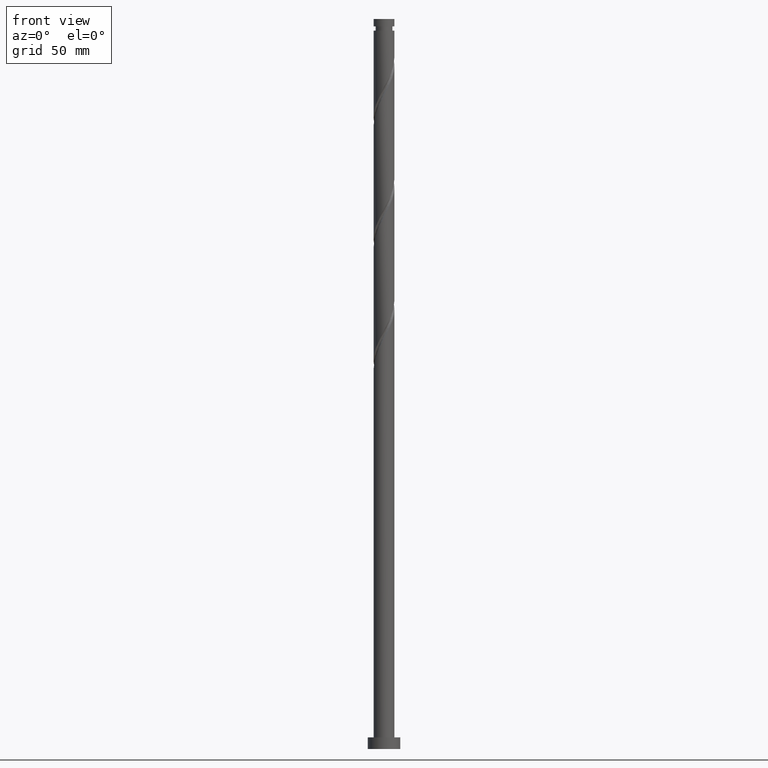
[diagram: clean part render]
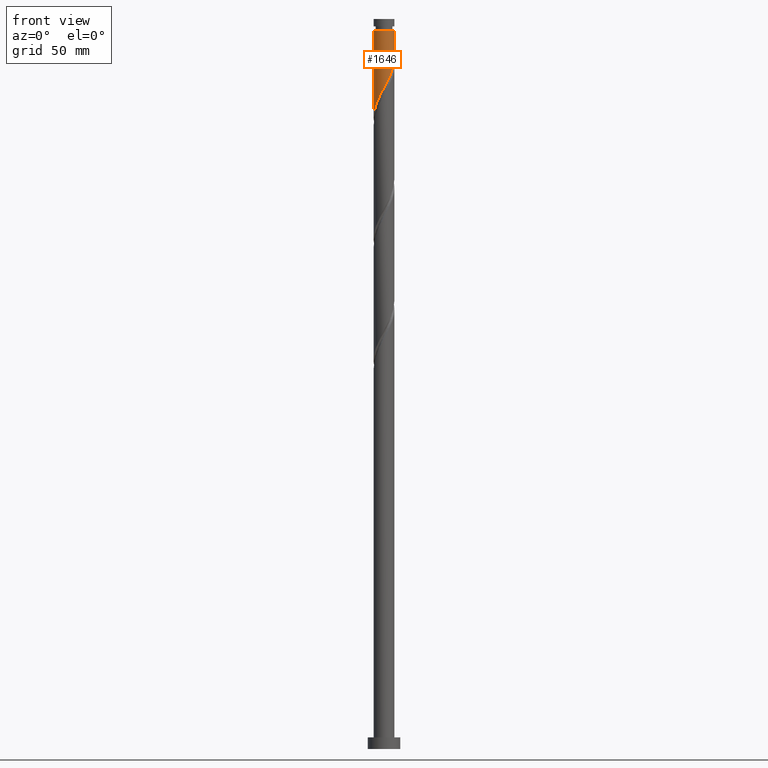
[diagram: same view with one face highlighted and labeled with its STEP entity id]
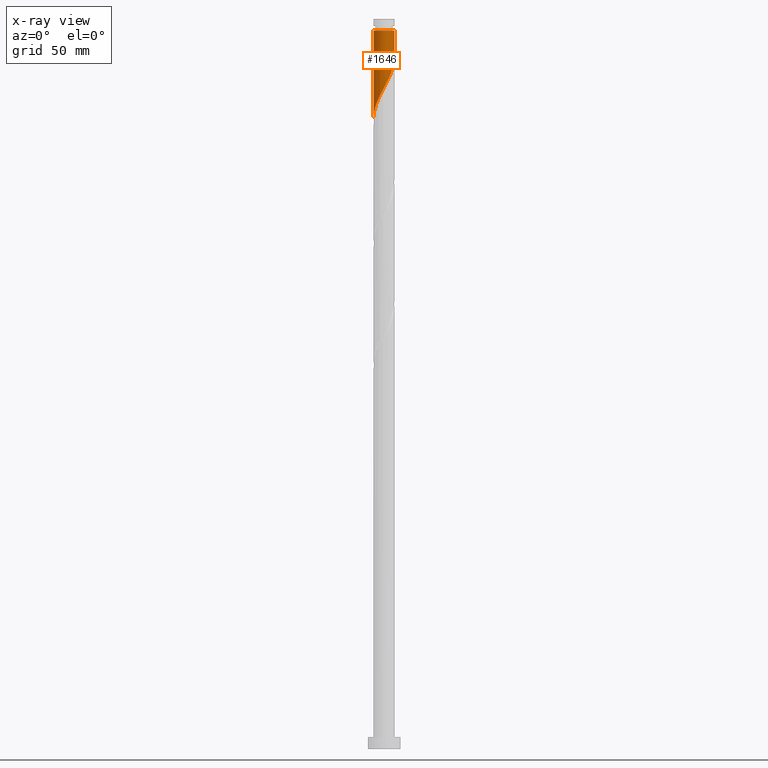
[diagram: x-ray of the same camera — body ghosted, the highlighted face saturated]
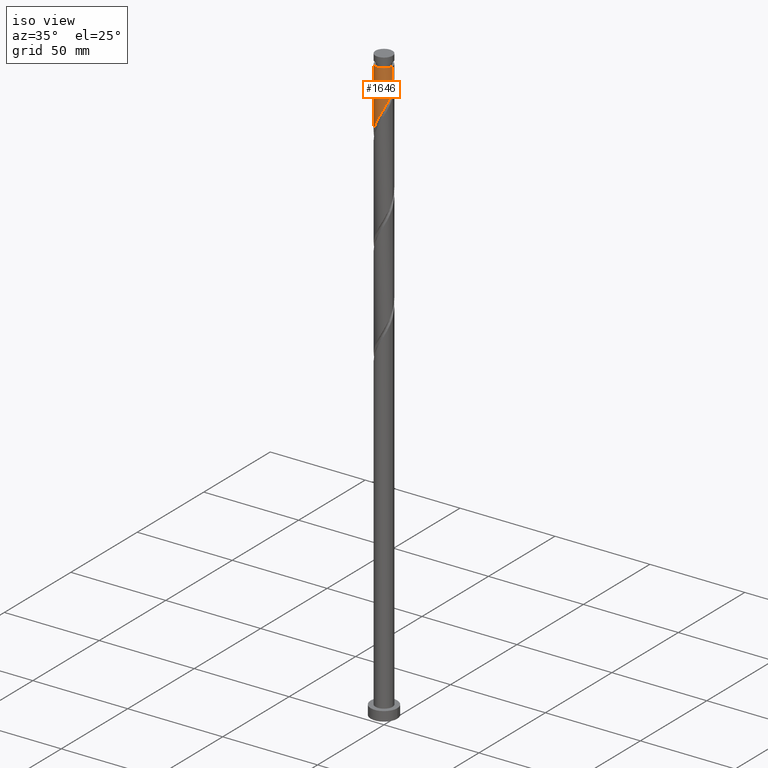
[diagram: same view with one face highlighted and labeled with its STEP entity id]
A machine part, front view. The second image highlights one B-rep face of the part: STEP entity #1646.
The next image is the same camera in x-ray: the body ghosted, the highlighted face saturated — about 0% of this face is hidden behind the body in this view.
A second angle (iso view) of the same face is appended — the face is thin or edge-on in the first view.
In plain terms, the highlighted cylindrical surface (edge-blend (fillet) strip) has radius 4.5 mm, axis along (-0, -0, -1).
Its self-contained STEP definition (entity closure, byte-faithful):
#22 = CARTESIAN_POINT ( 'NONE',  ( -4.006204905696196583, -2.049468773505890962, 276.2490483705882411 ) ) ;
#28 = CYLINDRICAL_SURFACE ( 'NONE', #849, 4.500000000000000888 ) ;
#103 = CARTESIAN_POINT ( 'NONE',  ( 2.049468773505890518, -4.006204905696196583, 289.3740483705881275 ) ) ;
#129 =( BOUNDED_CURVE ( )  B_SPLINE_CURVE ( 2, ( #1253, #1849, #1858, #1156, #276, #1122, #1276, #1708, #693, #1136, #103, #706, #257, #725, #1915, #1717, #1113, #384, #681, #396, #1731, #1134, #404, #243, #22, #1351, #618, #189, #478, #629, #1213 ),
 .UNSPECIFIED., .F., .T. ) 
 B_SPLINE_CURVE_WITH_KNOTS ( ( 3, 2, 2, 2, 2, 2, 2, 2, 2, 2, 2, 2, 2, 2, 2, 3 ),
 ( 0.3045303401299222501, 0.3125000000000000000, 0.3214285714285714524, 0.3303571428571428492, 0.3392857142857143016, 0.3482142857142856984, 0.3571428571428571508, 0.3660714285714285476, 0.3750000000000000000, 0.3839285714285714524, 0.3928571428571428492, 0.4017857142857143016, 0.4107142857142856984, 0.4196428571428571508, 0.4285714285714285476, 0.4295303401299221946 ),
 .UNSPECIFIED. ) 
 CURVE ( )  GEOMETRIC_REPRESENTATION_ITEM ( )  RATIONAL_B_SPLINE_CURVE ( ( 0.9079949616362008591, 0.9039886423360644629, 0.9090909090909310430, 0.9033747362666060265, 0.9090909090909310430, 0.9033747362666060265, 0.9090909090909310430, 0.9033747362666060265, 0.9090909090909310430, 0.9033747362666060265, 0.9090909090909310430, 0.9033747362666060265, 0.9090909090909310430, 0.9033747362666060265, 0.9090909090909310430, 0.9033747362666060265, 0.9090909090909310430, 0.9033747362666060265, 0.9090909090909310430, 0.9033747362666060265, 0.9090909090909310430, 0.9033747362666060265, 0.9090909090909310430, 0.9033747362666060265, 0.9090909090909310430, 0.9033747362666060265, 0.9090909090909310430, 0.9033747362666060265, 0.9090909090909310430, 0.9084770030214727177, 0.9079949616362009701 ) ) 
 REPRESENTATION_ITEM ( '' )  );
#142 = ORIENTED_EDGE ( 'NONE', *, *, #415, .T. ) ;
#151 = EDGE_CURVE ( 'NONE', #1060, #1453, #129, .T. ) ;
#152 = DIRECTION ( 'NONE',  ( -1.000000000000000000, 0.000000000000000000, 0.000000000000000000 ) ) ;
#189 = CARTESIAN_POINT ( 'NONE',  ( -4.486496802515031135, -0.6151618214612561975, 273.4365483705881275 ) ) ;
#243 = CARTESIAN_POINT ( 'NONE',  ( -3.775285233751813241, -2.500859658072928315, 277.1865483705881275 ) ) ;
#257 = CARTESIAN_POINT ( 'NONE',  ( 1.106619855200054570, -4.361810690077805752, 287.4990483705880706 ) ) ;
#266 = CARTESIAN_POINT ( 'NONE',  ( 0.000000000000000000, 0.000000000000000000, 309.9990483705881275 ) ) ;
#271 = VERTEX_POINT ( 'NONE', #1390 ) ;
#276 = CARTESIAN_POINT ( 'NONE',  ( 4.100167112320053597, -1.854354240982301727, 294.9990483705881843 ) ) ;
#303 = FACE_OUTER_BOUND ( 'NONE', #1176, .T. ) ;
#384 = CARTESIAN_POINT ( 'NONE',  ( -1.392376358355452481, -4.309102656267769227, 282.8115483705881275 ) ) ;
#396 = CARTESIAN_POINT ( 'NONE',  ( -2.316332123609150528, -3.891231568372338412, 280.9365483705880706 ) ) ;
#404 = CARTESIAN_POINT ( 'NONE',  ( -3.449711278888139443, -2.889548769671827166, 278.1240483705881275 ) ) ;
#409 = ORIENTED_EDGE ( 'NONE', *, *, #1757, .F. ) ;
#415 = EDGE_CURVE ( 'NONE', #271, #1453, #1018, .T. ) ;
#478 = CARTESIAN_POINT ( 'NONE',  ( -4.498697073123632428, -0.1082803965123919215, 272.4990483705881843 ) ) ;
#571 = CARTESIAN_POINT ( 'NONE',  ( -4.500000000000000888, 0.000000000000000000, 315.0000000000000000 ) ) ;
#601 = VERTEX_POINT ( 'NONE', #1254 ) ;
#618 = CARTESIAN_POINT ( 'NONE',  ( -4.361810690077805752, -1.106619855200054792, 274.3740483705881275 ) ) ;
#629 = CARTESIAN_POINT ( 'NONE',  ( -4.500000000000003553, -0.05414803724874443780, 272.3989281367193485 ) ) ;
#681 = CARTESIAN_POINT ( 'NONE',  ( -1.854354240982301505, -4.100167112320053597, 281.8740483705881275 ) ) ;
#693 = CARTESIAN_POINT ( 'NONE',  ( 2.889548769671827166, -3.449711278888139887, 291.2490483705881843 ) ) ;
#706 = CARTESIAN_POINT ( 'NONE',  ( 1.598077888938853164, -4.237124577640579481, 288.4365483705880706 ) ) ;
#725 = CARTESIAN_POINT ( 'NONE',  ( 0.6151618214612560864, -4.486496802515029358, 286.5615483705881275 ) ) ;
#751 = LINE ( 'NONE', #1337, #1370 ) ;
#760 = AXIS2_PLACEMENT_3D ( 'NONE', #266, #1112, #1313 ) ;
#849 = AXIS2_PLACEMENT_3D ( 'NONE', #1490, #896, #152 ) ;
#896 = DIRECTION ( 'NONE',  ( -0.000000000000000000, -0.000000000000000000, -1.000000000000000000 ) ) ;
#921 = CARTESIAN_POINT ( 'NONE',  ( 4.500000000000002665, 2.917988723458370690E-15, 298.5485654484941733 ) ) ;
#924 = CIRCLE ( 'NONE', #760, 4.499999999999975131 ) ;
#1018 = LINE ( 'NONE', #571, #1320 ) ;
#1052 = DIRECTION ( 'NONE',  ( -0.000000000000000000, -0.000000000000000000, -1.000000000000000000 ) ) ;
#1060 = VERTEX_POINT ( 'NONE', #921 ) ;
#1112 = DIRECTION ( 'NONE',  ( -0.000000000000000000, -0.000000000000000000, -1.000000000000000000 ) ) ;
#1113 = CARTESIAN_POINT ( 'NONE',  ( -0.8954886933959623763, -4.410000000000001030, 283.7490483705881843 ) ) ;
#1122 = CARTESIAN_POINT ( 'NONE',  ( 3.891231568372338412, -2.316332123609150528, 294.0615483705881275 ) ) ;
#1134 = CARTESIAN_POINT ( 'NONE',  ( -3.124137324024466533, -3.278237881270724685, 279.0615483705881843 ) ) ;
#1136 = CARTESIAN_POINT ( 'NONE',  ( 2.500859658072928315, -3.775285233751813685, 290.3115483705881275 ) ) ;
#1156 = CARTESIAN_POINT ( 'NONE',  ( 4.309102656267769227, -1.392376358355452703, 295.9365483705881843 ) ) ;
#1176 = EDGE_LOOP ( 'NONE', ( #409, #1897, #142, #1894 ) ) ;
#1213 = CARTESIAN_POINT ( 'NONE',  ( -4.500000000000003553, 2.932914496979897836E-15, 272.2985654484942302 ) ) ;
#1253 = CARTESIAN_POINT ( 'NONE',  ( 4.500000000000002665, 2.917988723458370690E-15, 298.5485654484941165 ) ) ;
#1254 = CARTESIAN_POINT ( 'NONE',  ( 4.499999999999975131, 5.510910596163073778E-16, 309.9990483705881275 ) ) ;
#1265 = CARTESIAN_POINT ( 'NONE',  ( -4.500000000000001776, 2.932914496979897442E-15, 272.2985654484942302 ) ) ;
#1276 = CARTESIAN_POINT ( 'NONE',  ( 3.584734724821531771, -2.720234723816808753, 293.1240483705880706 ) ) ;
#1313 = DIRECTION ( 'NONE',  ( -1.000000000000000000, 0.000000000000000000, 0.000000000000000000 ) ) ;
#1320 = VECTOR ( 'NONE', #1867, 1000.000000000000000 ) ;
#1337 = CARTESIAN_POINT ( 'NONE',  ( 4.500000000000000888, 5.510910596163089556E-16, 315.0000000000000000 ) ) ;
#1351 = CARTESIAN_POINT ( 'NONE',  ( -4.237124577640579481, -1.598077888938853164, 275.3115483705881275 ) ) ;
#1370 = VECTOR ( 'NONE', #1052, 1000.000000000000000 ) ;
#1390 = CARTESIAN_POINT ( 'NONE',  ( -4.499999999999975131, 0.000000000000000000, 309.9990483705881275 ) ) ;
#1453 = VERTEX_POINT ( 'NONE', #1265 ) ;
#1458 = EDGE_CURVE ( 'NONE', #601, #271, #924, .T. ) ;
#1490 = CARTESIAN_POINT ( 'NONE',  ( 0.000000000000000000, 0.000000000000000000, 315.0000000000000000 ) ) ;
#1646 = ADVANCED_FACE ( 'NONE', ( #303 ), #28, .T. ) ;
#1708 = CARTESIAN_POINT ( 'NONE',  ( 3.278237881270724685, -3.124137324024466533, 292.1865483705881843 ) ) ;
#1717 = CARTESIAN_POINT ( 'NONE',  ( -0.3986010284364727707, -4.510897343732234610, 284.6865483705881843 ) ) ;
#1731 = CARTESIAN_POINT ( 'NONE',  ( -2.720234723816808753, -3.584734724821531771, 279.9990483705881275 ) ) ;
#1757 = EDGE_CURVE ( 'NONE', #601, #1060, #751, .T. ) ;
#1849 = CARTESIAN_POINT ( 'NONE',  ( 4.500000000000000000, -0.4522670168666619861, 297.7102943695305726 ) ) ;
#1858 = CARTESIAN_POINT ( 'NONE',  ( 4.410000000000001030, -0.8954886933959627093, 296.8740483705880138 ) ) ;
#1867 = DIRECTION ( 'NONE',  ( -0.000000000000000000, -0.000000000000000000, -1.000000000000000000 ) ) ;
#1894 = ORIENTED_EDGE ( 'NONE', *, *, #151, .F. ) ;
#1897 = ORIENTED_EDGE ( 'NONE', *, *, #1458, .T. ) ;
#1915 = CARTESIAN_POINT ( 'NONE',  ( 0.1082803965123917272, -4.498697073123632428, 285.6240483705881843 ) ) ;